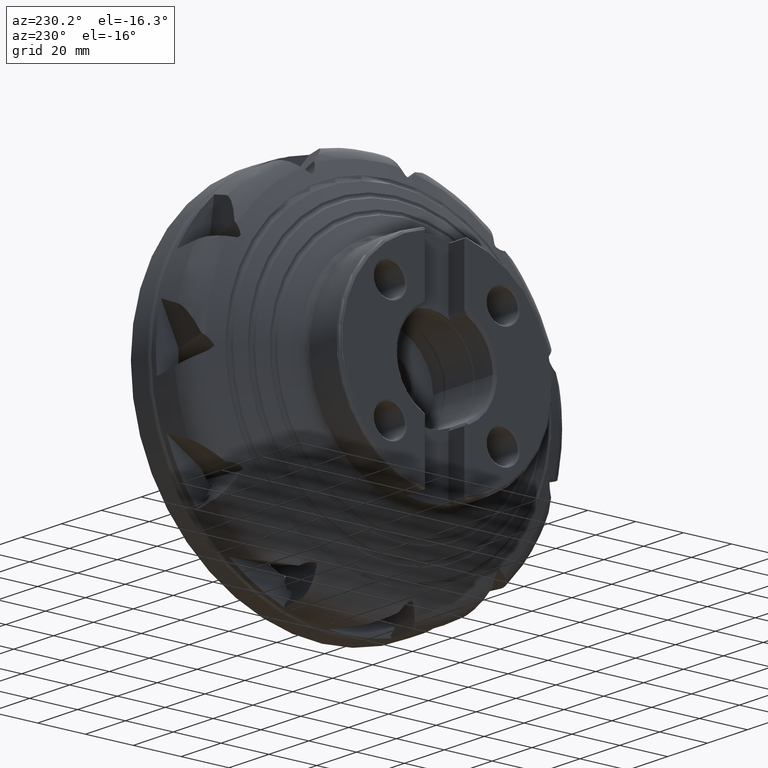
[diagram: clean part render]
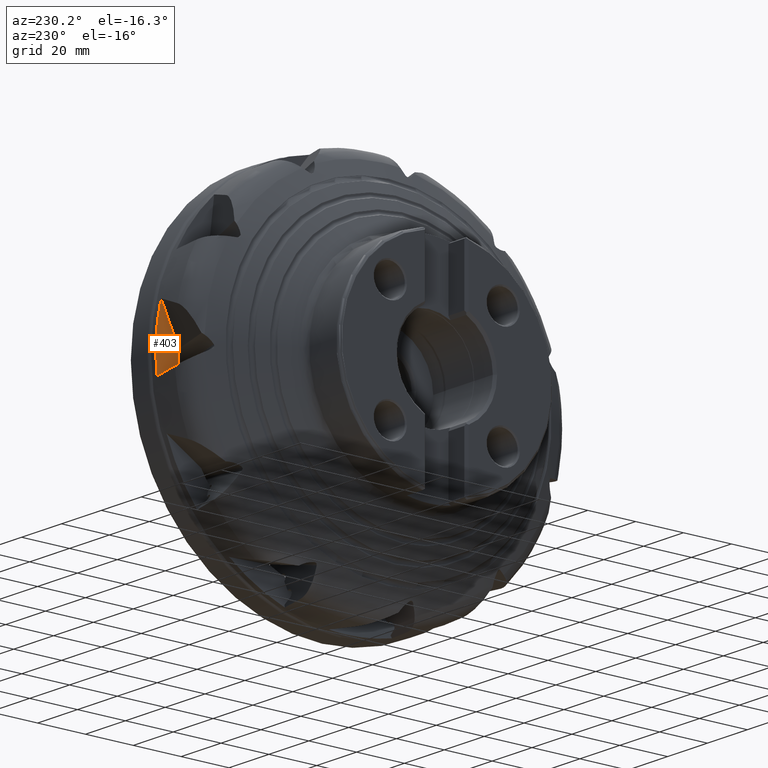
[diagram: same view with one face highlighted and labeled with its STEP entity id]
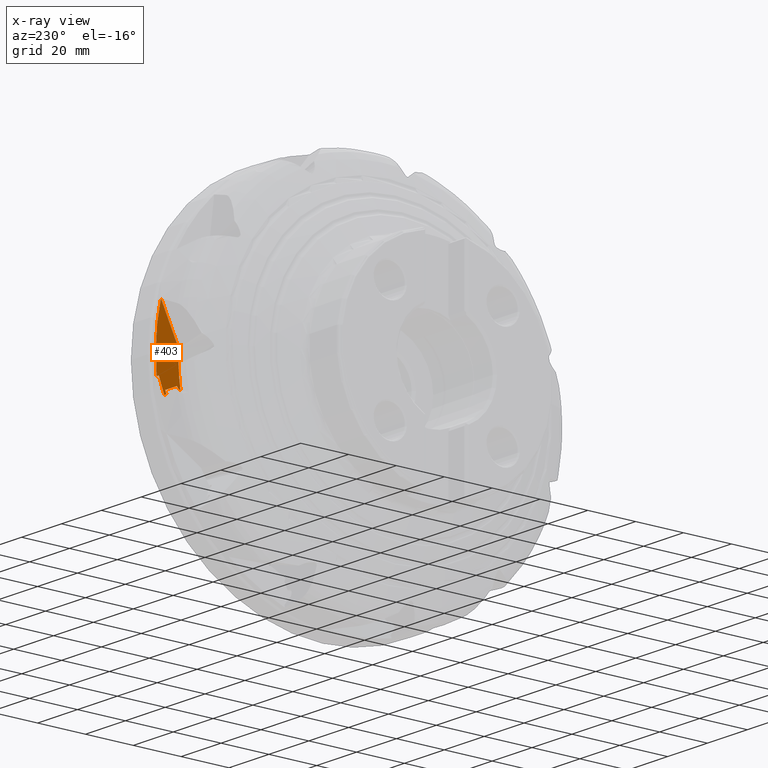
[diagram: x-ray of the same camera — body ghosted, the highlighted face saturated]
A machine part, auxiliary view. The second image highlights one B-rep face of the part: STEP entity #403.
The next image is the same camera in x-ray: the body ghosted, the highlighted face saturated — about 0% of this face is hidden behind the body in this view.
In plain terms, the highlighted conical surface has half-angle 87.309 deg.
Its self-contained STEP definition (entity closure, byte-faithful):
#127 = VERTEX_POINT ( 'NONE', #2436 ) ;
#133 = VERTEX_POINT ( 'NONE', #2442 ) ;
#403 = ADVANCED_FACE ( 'NONE', ( #6651 ), #6654, .F. ) ;
#922 = EDGE_CURVE ( 'NONE', #1847, #1708, #8686, .T. ) ;
#1281 = EDGE_CURVE ( 'NONE', #1708, #1460, #8756, .T. ) ;
#1286 = EDGE_CURVE ( 'NONE', #1441, #15030, #8757, .T. ) ;
#1292 = EDGE_CURVE ( 'NONE', #14886, #15041, #8758, .T. ) ;
#1305 = EDGE_CURVE ( 'NONE', #1460, #1441, #8761, .T. ) ;
#1389 = EDGE_CURVE ( 'NONE', #127, #15041, #8793, .T. ) ;
#1390 = EDGE_CURVE ( 'NONE', #14886, #1847, #8794, .T. ) ;
#1397 = EDGE_CURVE ( 'NONE', #15030, #1498, #8798, .T. ) ;
#1441 = VERTEX_POINT ( 'NONE', #11861 ) ;
#1460 = VERTEX_POINT ( 'NONE', #11879 ) ;
#1498 = VERTEX_POINT ( 'NONE', #11917 ) ;
#1708 = VERTEX_POINT ( 'NONE', #12127 ) ;
#1821 = VERTEX_POINT ( 'NONE', #12240 ) ;
#1847 = VERTEX_POINT ( 'NONE', #12942 ) ;
#2015 = VERTEX_POINT ( 'NONE', #13110 ) ;
#2436 = CARTESIAN_POINT ( 'NONE',  ( -10.64792904497913800, 76.06042472825673400, -13.40643897185763200 ) ) ;
#2442 = CARTESIAN_POINT ( 'NONE',  ( -10.29289730476655700, 69.60653239311966400, 3.208572491143931100 ) ) ;
#2642 = DIRECTION ( 'NONE',  ( 0.0000000000000000000, 0.0000000000000000000, 1.000000000000000000 ) ) ;
#2643 = DIRECTION ( 'NONE',  ( -1.000000000000000000, 0.0000000000000000000, 0.0000000000000000000 ) ) ;
#2644 = CARTESIAN_POINT ( 'NONE',  ( -10.29289730476655900, 0.0000000000000000000, 0.0000000000000000000 ) ) ;
#4470 = EDGE_CURVE ( 'NONE', #1498, #133, #12629, .T. ) ;
#4644 = EDGE_CURVE ( 'NONE', #133, #1821, #12893, .T. ) ;
#4652 = EDGE_CURVE ( 'NONE', #2015, #14972, #12899, .T. ) ;
#5231 = EDGE_LOOP ( 'NONE', ( #15221, #15060, #15237, #15103, #15254, #15115, #15196, #15228, #15285, #15225, #15167, #15207, #15045 ) ) ;
#5685 = AXIS2_PLACEMENT_3D ( 'NONE', #2644, #2643, #2642 ) ;
#6651 = FACE_OUTER_BOUND ( 'NONE', #5231, .T. ) ;
#6654 = CONICAL_SURFACE ( 'NONE', #5685, 69.68044409463347200, 1.523822126671621400 ) ;
#8686 = B_SPLINE_CURVE_WITH_KNOTS ( 'NONE', 3,
 ( #10054, #10061, #10062, #10063, #10064, #10065 ),
 .UNSPECIFIED., .F., .F.,
 ( 4, 2, 4 ),
 ( 0.0001928909755879100000, 0.0002455646044610447800, 0.0002982382333341795500 ),
 .UNSPECIFIED. ) ;
#8756 = B_SPLINE_CURVE_WITH_KNOTS ( 'NONE', 3,
 ( #11211, #11215, #11216, #11217 ),
 .UNSPECIFIED., .F., .F.,
 ( 4, 4 ),
 ( 0.001866212354131838100, 0.003082568819594493800 ),
 .UNSPECIFIED. ) ;
#8757 = B_SPLINE_CURVE_WITH_KNOTS ( 'NONE', 3,
 ( #11223, #11226, #11227, #11228 ),
 .UNSPECIFIED., .F., .F.,
 ( 4, 4 ),
 ( 0.001565000650467234100, 0.002829516182977032600 ),
 .UNSPECIFIED. ) ;
#8758 = B_SPLINE_CURVE_WITH_KNOTS ( 'NONE', 3,
 ( #11238, #11244, #11245, #11246 ),
 .UNSPECIFIED., .F., .F.,
 ( 4, 4 ),
 ( 0.007005674156309787100, 0.007438862082835995100 ),
 .UNSPECIFIED. ) ;
#8761 = B_SPLINE_CURVE_WITH_KNOTS ( 'NONE', 3,
 ( #11268, #11277, #11278, #11279 ),
 .UNSPECIFIED., .F., .F.,
 ( 4, 4 ),
 ( 0.002277327200105614800, 0.007856112861734834700 ),
 .UNSPECIFIED. ) ;
#8793 = B_SPLINE_CURVE_WITH_KNOTS ( 'NONE', 3,
 ( #11619, #11631, #11632, #11633, #11634, #11635 ),
 .UNSPECIFIED., .F., .F.,
 ( 4, 2, 4 ),
 ( 0.001244486647764516700, 0.001484896838677666900, 0.001725307029590817100 ),
 .UNSPECIFIED. ) ;
#8794 = B_SPLINE_CURVE_WITH_KNOTS ( 'NONE', 3,
 ( #11630, #11637, #11638, #11639, #11640, #11641 ),
 .UNSPECIFIED., .F., .F.,
 ( 4, 2, 4 ),
 ( 0.001761439909711972000, 0.001959244882980527800, 0.002157049856249083600 ),
 .UNSPECIFIED. ) ;
#8798 = B_SPLINE_CURVE_WITH_KNOTS ( 'NONE', 3,
 ( #11670, #11675, #11676, #11677, #11678, #11679, #11680, #11681 ),
 .UNSPECIFIED., .F., .F.,
 ( 4, 2, 2, 4 ),
 ( 0.0009650854533098122900, 0.001149267732005019400, 0.001333450010700226400, 0.001701814568090641000 ),
 .UNSPECIFIED. ) ;
#9221 = AXIS2_PLACEMENT_3D ( 'NONE', #14098, #14105, #14106 ) ;
#10054 = CARTESIAN_POINT ( 'NONE',  ( -10.59861038668649500, 75.05479470008941700, -13.06688525083121600 ) ) ;
#10061 = CARTESIAN_POINT ( 'NONE',  ( -10.59847117671372300, 75.05484677371663300, -13.04932054460544900 ) ) ;
#10062 = CARTESIAN_POINT ( 'NONE',  ( -10.59840036189706900, 75.05642009947008800, -13.03146528176645600 ) ) ;
#10063 = CARTESIAN_POINT ( 'NONE',  ( -10.59841046708401400, 75.06266884347685700, -12.99668354859768200 ) ) ;
#10064 = CARTESIAN_POINT ( 'NONE',  ( -10.59848932223717100, 75.06729871429428200, -12.97976365605626500 ) ) ;
#10065 = CARTESIAN_POINT ( 'NONE',  ( -10.59864349608673500, 75.07346555195134400, -12.96332458171393200 ) ) ;
#11211 = CARTESIAN_POINT ( 'NONE',  ( -10.59864349608673500, 75.07346555195134400, -12.96332458171393200 ) ) ;
#11215 = CARTESIAN_POINT ( 'NONE',  ( -10.60220362588342800, 75.21586805758860800, -12.58371910069882900 ) ) ;
#11216 = CARTESIAN_POINT ( 'NONE',  ( -10.60590749738355900, 75.35820751646628000, -12.20409128434313900 ) ) ;
#11217 = CARTESIAN_POINT ( 'NONE',  ( -10.60975380442045000, 75.50048443634636900, -11.82444150712173500 ) ) ;
#11223 = CARTESIAN_POINT ( 'NONE',  ( -10.35774486101638600, 70.41641213144660600, -9.541559609838930800 ) ) ;
#11226 = CARTESIAN_POINT ( 'NONE',  ( -10.34705019218552600, 70.14334481099456300, -9.862474673944319600 ) ) ;
#11227 = CARTESIAN_POINT ( 'NONE',  ( -10.33648900696329600, 69.87044366300855800, -10.18353569348795400 ) ) ;
#11228 = CARTESIAN_POINT ( 'NONE',  ( -10.32606547270043700, 69.59771418195693100, -10.50474683262982900 ) ) ;
#11238 = CARTESIAN_POINT ( 'NONE',  ( -10.61079614642675200, 75.26274450782997900, -13.38093263638859300 ) ) ;
#11244 = CARTESIAN_POINT ( 'NONE',  ( -10.61737277293770100, 75.39433667046098700, -13.44001265517134200 ) ) ;
#11245 = CARTESIAN_POINT ( 'NONE',  ( -10.62395053748644400, 75.52592885140686000, -13.49909250648799400 ) ) ;
#11246 = CARTESIAN_POINT ( 'NONE',  ( -10.63052942149526300, 75.65752105034414400, -13.55817219306117100 ) ) ;
#11268 = CARTESIAN_POINT ( 'NONE',  ( -10.60975380442045000, 75.50048443634636900, -11.82444150712173500 ) ) ;
#11277 = CARTESIAN_POINT ( 'NONE',  ( -10.52551302664536500, 73.80578977354407800, -11.06351583641902500 ) ) ;
#11278 = CARTESIAN_POINT ( 'NONE',  ( -10.44149206740092600, 72.11109867922391500, -10.30255783277412200 ) ) ;
#11279 = CARTESIAN_POINT ( 'NONE',  ( -10.35774486101638600, 70.41641213144660600, -9.541559609838930800 ) ) ;
#11619 = CARTESIAN_POINT ( 'NONE',  ( -10.64792904497913800, 76.06042472825673400, -13.40643897185763200 ) ) ;
#11630 = CARTESIAN_POINT ( 'NONE',  ( -10.61079614642675200, 75.26274450782997900, -13.38093263638859300 ) ) ;
#11631 = CARTESIAN_POINT ( 'NONE',  ( -10.64723756910291500, 76.03225605790775900, -13.48151210297771200 ) ) ;
#11632 = CARTESIAN_POINT ( 'NONE',  ( -10.64483579817026300, 75.96930157078659800, -13.54355536063377500 ) ) ;
#11633 = CARTESIAN_POINT ( 'NONE',  ( -10.63823775635292500, 75.81703746314046600, -13.59769168781060400 ) ) ;
#11634 = CARTESIAN_POINT ( 'NONE',  ( -10.63419196792398600, 75.73078006169292600, -13.59106258826771600 ) ) ;
#11635 = CARTESIAN_POINT ( 'NONE',  ( -10.63052942149526300, 75.65752105034414400, -13.55817219306117100 ) ) ;
#11637 = CARTESIAN_POINT ( 'NONE',  ( -10.60776202548480800, 75.20203457762826800, -13.35367612091756900 ) ) ;
#11638 = CARTESIAN_POINT ( 'NONE',  ( -10.60497781431527100, 75.14976435082685700, -13.30931083869648500 ) ) ;
#11639 = CARTESIAN_POINT ( 'NONE',  ( -10.60063261513660600, 75.07549425958077900, -13.19828004924917900 ) ) ;
#11640 = CARTESIAN_POINT ( 'NONE',  ( -10.59913316109058800, 75.05459914829992800, -13.13284589033493400 ) ) ;
#11641 = CARTESIAN_POINT ( 'NONE',  ( -10.59861038668649500, 75.05479470008941700, -13.06688525083121600 ) ) ;
#11670 = CARTESIAN_POINT ( 'NONE',  ( -10.32606547270043700, 69.59771418195693100, -10.50474683262982900 ) ) ;
#11675 = CARTESIAN_POINT ( 'NONE',  ( -10.32449587985734000, 69.55664613048989500, -10.55311533149263100 ) ) ;
#11676 = CARTESIAN_POINT ( 'NONE',  ( -10.32171943400784100, 69.49354037062602200, -10.57514792682828300 ) ) ;
#11677 = CARTESIAN_POINT ( 'NONE',  ( -10.31615589666750700, 69.37022419539860600, -10.59873945613077200 ) ) ;
#11678 = CARTESIAN_POINT ( 'NONE',  ( -10.31327164979099300, 69.30796977488097400, -10.59993832388128400 ) ) ;
#11679 = CARTESIAN_POINT ( 'NONE',  ( -10.30446080000216800, 69.12029275610322500, -10.58729648832421300 ) ) ;
#11680 = CARTESIAN_POINT ( 'NONE',  ( -10.29864955565748400, 68.99977848530862400, -10.55762592210022400 ) ) ;
#11681 = CARTESIAN_POINT ( 'NONE',  ( -10.29289730476648000, 68.88273445921110700, -10.51347623990981200 ) ) ;
#11861 = CARTESIAN_POINT ( 'NONE',  ( -10.35774486101638600, 70.41641213144660600, -9.541559609838930800 ) ) ;
#11879 = CARTESIAN_POINT ( 'NONE',  ( -10.60975380442045000, 75.50048443634636900, -11.82444150712173500 ) ) ;
#11917 = CARTESIAN_POINT ( 'NONE',  ( -10.29289730476648000, 68.88273445921110700, -10.51347623990981200 ) ) ;
#12127 = CARTESIAN_POINT ( 'NONE',  ( -10.59864349608673500, 75.07346555195134400, -12.96332458171393200 ) ) ;
#12240 = CARTESIAN_POINT ( 'NONE',  ( -10.75802831989757300, 77.40571680612190200, 18.45360752618454500 ) ) ;
#12629 = CIRCLE ( 'NONE', #9221, 69.68044409463347200 ) ;
#12893 = B_SPLINE_CURVE_WITH_KNOTS ( 'NONE', 3,
 ( #17229, #17234, #17235, #17236 ),
 .UNSPECIFIED., .F., .F.,
 ( 4, 4 ),
 ( 8.596981840215398200E-006, 0.01713911704366951100 ),
 .UNSPECIFIED. ) ;
#12899 = B_SPLINE_CURVE_WITH_KNOTS ( 'NONE', 3,
 ( #17266, #17275, #17276, #17277 ),
 .UNSPECIFIED., .F., .F.,
 ( 4, 4 ),
 ( 4.489934179095639800E-006, 0.001008673293771038800 ),
 .UNSPECIFIED. ) ;
#12942 = CARTESIAN_POINT ( 'NONE',  ( -10.59861038668649500, 75.05479470008941700, -13.06688525083121600 ) ) ;
#13110 = CARTESIAN_POINT ( 'NONE',  ( -10.75802831989757300, 79.17882172605587200, -7.930625137620675800 ) ) ;
#14098 = CARTESIAN_POINT ( 'NONE',  ( -10.29289730476655900, 0.0000000000000000000, 0.0000000000000000000 ) ) ;
#14105 = DIRECTION ( 'NONE',  ( 1.000000000000000000, -0.0000000000000000000, -0.0000000000000000000 ) ) ;
#14106 = DIRECTION ( 'NONE',  ( 0.0000000000000000000, 0.0000000000000000000, -1.000000000000000000 ) ) ;
#14378 = B_SPLINE_CURVE_WITH_KNOTS ( 'NONE', 3,
 ( #19904, #19909, #19910, #19911 ),
 .UNSPECIFIED., .F., .F.,
 ( 4, 4 ),
 ( 0.0002559491273375235000, 0.006541922474934649300 ),
 .UNSPECIFIED. ) ;
#14886 = VERTEX_POINT ( 'NONE', #18658 ) ;
#14972 = VERTEX_POINT ( 'NONE', #18744 ) ;
#15030 = VERTEX_POINT ( 'NONE', #18802 ) ;
#15041 = VERTEX_POINT ( 'NONE', #18813 ) ;
#15045 = ORIENTED_EDGE ( 'NONE', *, *, #1397, .T. ) ;
#15060 = ORIENTED_EDGE ( 'NONE', *, *, #4644, .T. ) ;
#15103 = ORIENTED_EDGE ( 'NONE', *, *, #4652, .T. ) ;
#15115 = ORIENTED_EDGE ( 'NONE', *, *, #1389, .T. ) ;
#15167 = ORIENTED_EDGE ( 'NONE', *, *, #1305, .T. ) ;
#15196 = ORIENTED_EDGE ( 'NONE', *, *, #1292, .F. ) ;
#15207 = ORIENTED_EDGE ( 'NONE', *, *, #1286, .T. ) ;
#15221 = ORIENTED_EDGE ( 'NONE', *, *, #4470, .T. ) ;
#15225 = ORIENTED_EDGE ( 'NONE', *, *, #1281, .T. ) ;
#15228 = ORIENTED_EDGE ( 'NONE', *, *, #1390, .T. ) ;
#15237 = ORIENTED_EDGE ( 'NONE', *, *, #15617, .F. ) ;
#15254 = ORIENTED_EDGE ( 'NONE', *, *, #15783, .F. ) ;
#15285 = ORIENTED_EDGE ( 'NONE', *, *, #922, .T. ) ;
#15617 = EDGE_CURVE ( 'NONE', #2015, #1821, #18108, .T. ) ;
#15783 = EDGE_CURVE ( 'NONE', #127, #14972, #14378, .T. ) ;
#17229 = CARTESIAN_POINT ( 'NONE',  ( -10.29289730476655700, 69.60653239311966400, 3.208572491143931100 ) ) ;
#17234 = CARTESIAN_POINT ( 'NONE',  ( -10.42575127797465000, 72.20129294210102000, 8.293469194900616500 ) ) ;
#17235 = CARTESIAN_POINT ( 'NONE',  ( -10.58358431388360900, 74.80164553232839400, 13.37474297494651400 ) ) ;
#17236 = CARTESIAN_POINT ( 'NONE',  ( -10.75802831989757300, 77.40571680612190200, 18.45360752618454500 ) ) ;
#17266 = CARTESIAN_POINT ( 'NONE',  ( -10.75802831989757300, 79.17882172605587200, -7.930625137620675800 ) ) ;
#17275 = CARTESIAN_POINT ( 'NONE',  ( -10.74311822225750900, 78.87378030281226400, -7.793621041599993600 ) ) ;
#17276 = CARTESIAN_POINT ( 'NONE',  ( -10.72821806588145900, 78.56873904864122000, -7.656615486837463200 ) ) ;
#17277 = CARTESIAN_POINT ( 'NONE',  ( -10.71332821678763000, 78.26369797063810600, -7.519608420022525900 ) ) ;
#18108 = CIRCLE ( 'NONE', #19455, 79.57500000000000300 ) ;
#18658 = CARTESIAN_POINT ( 'NONE',  ( -10.61079614642675200, 75.26274450782997900, -13.38093263638859300 ) ) ;
#18744 = CARTESIAN_POINT ( 'NONE',  ( -10.71332821678763000, 78.26369797063810600, -7.519608420022525900 ) ) ;
#18802 = CARTESIAN_POINT ( 'NONE',  ( -10.32606547270043700, 69.59771418195693100, -10.50474683262982900 ) ) ;
#18813 = CARTESIAN_POINT ( 'NONE',  ( -10.63052942149526300, 75.65752105034414400, -13.55817219306117100 ) ) ;
#19184 = CARTESIAN_POINT ( 'NONE',  ( -10.75802831989757300, 0.0000000000000000000, 0.0000000000000000000 ) ) ;
#19185 = DIRECTION ( 'NONE',  ( 1.000000000000000000, -0.0000000000000000000, -0.0000000000000000000 ) ) ;
#19186 = DIRECTION ( 'NONE',  ( 0.0000000000000000000, 0.0000000000000000000, -1.000000000000000000 ) ) ;
#19455 = AXIS2_PLACEMENT_3D ( 'NONE', #19184, #19185, #19186 ) ;
#19904 = CARTESIAN_POINT ( 'NONE',  ( -10.64792904497913800, 76.06042472825673400, -13.40643897185763200 ) ) ;
#19909 = CARTESIAN_POINT ( 'NONE',  ( -10.66599772301427900, 76.79648892472553700, -11.44473317425763700 ) ) ;
#19910 = CARTESIAN_POINT ( 'NONE',  ( -10.68786223894603700, 77.53088486298474900, -9.482446406945573600 ) ) ;
#19911 = CARTESIAN_POINT ( 'NONE',  ( -10.71332821678763000, 78.26369797063810600, -7.519608420022525900 ) ) ;